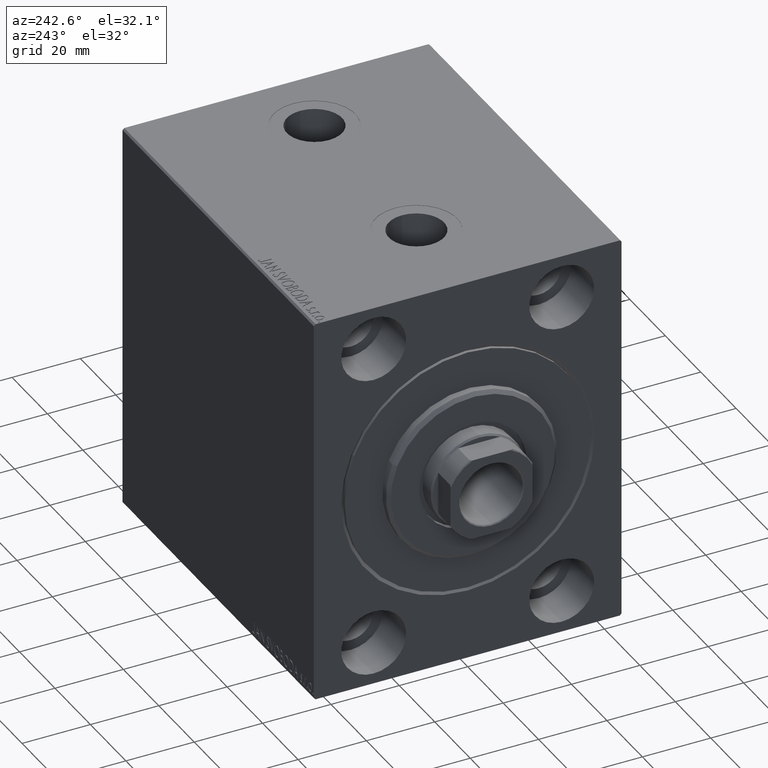
[diagram: clean part render]
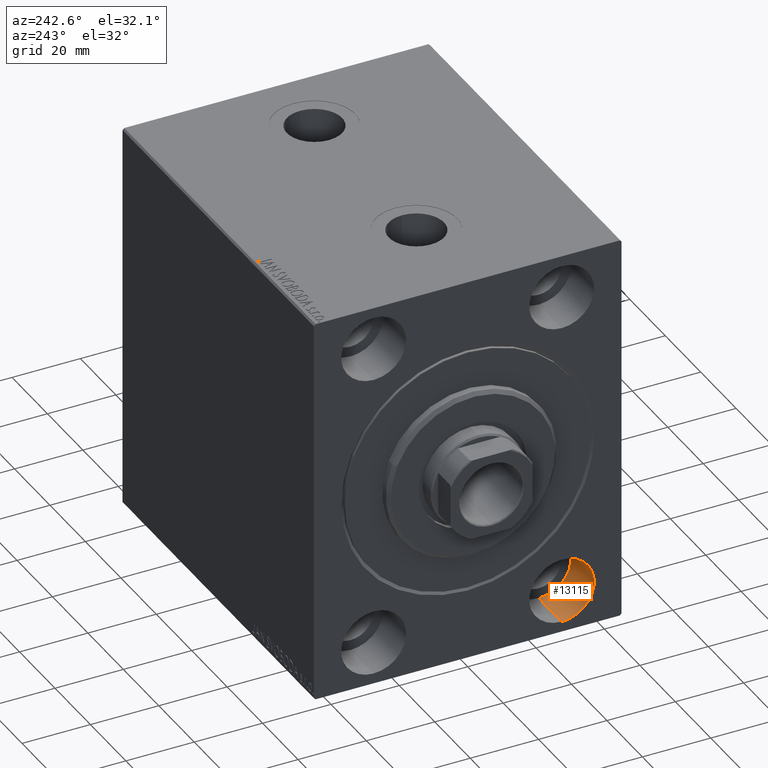
[diagram: same view with one face highlighted and labeled with its STEP entity id]
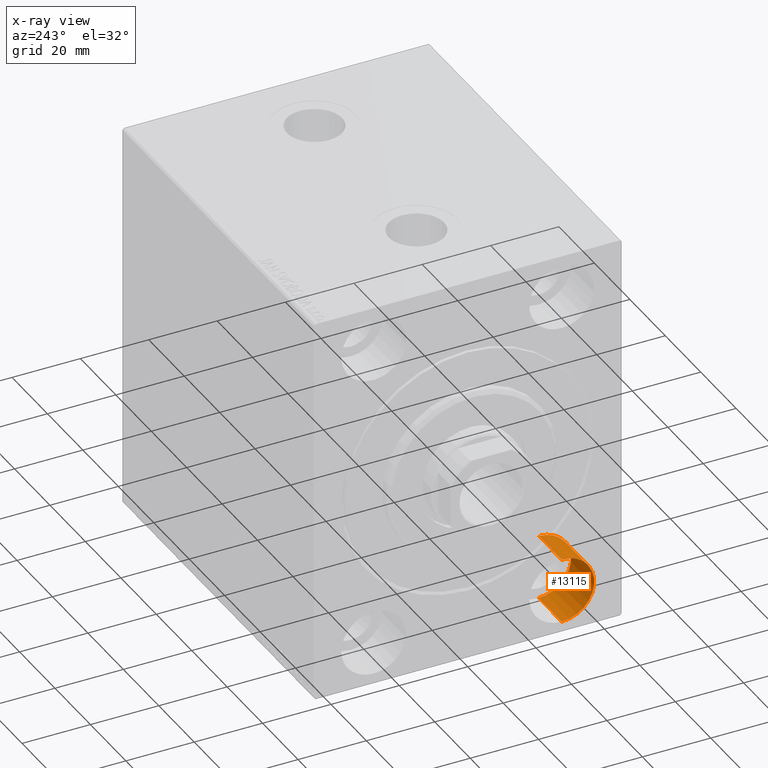
[diagram: x-ray of the same camera — body ghosted, the highlighted face saturated]
A machine part, auxiliary view. The second image highlights one B-rep face of the part: STEP entity #13115.
The next image is the same camera in x-ray: the body ghosted, the highlighted face saturated — about 0% of this face is hidden behind the body in this view.
In plain terms, the highlighted cylindrical surface (partial cylindrical patch) has radius 9.5 mm, axis along (-1, -0, -0).
Its self-contained STEP definition (entity closure, byte-faithful):
#344 = ORIENTED_EDGE ( 'NONE', *, *, #42812, .T. ) ;
#2420 = ORIENTED_EDGE ( 'NONE', *, *, #19828, .F. ) ;
#3396 = CARTESIAN_POINT ( 'NONE',  ( 13.00000000000000000, -27.50000000000000000, -44.99999999999998579 ) ) ;
#5499 = CIRCLE ( 'NONE', #11180, 9.500000000000001776 ) ;
#5508 = LINE ( 'NONE', #18888, #25443 ) ;
#6343 = CIRCLE ( 'NONE', #36259, 9.500000000000001776 ) ;
#8895 = CARTESIAN_POINT ( 'NONE',  ( 13.00000000000000000, -27.50000000000000000, -44.99999999999998579 ) ) ;
#9997 = CARTESIAN_POINT ( 'NONE',  ( 0.000000000000000000, -27.50000000000000000, -44.99999999999998579 ) ) ;
#11180 = AXIS2_PLACEMENT_3D ( 'NONE', #8895, #29393, #38993 ) ;
#13115 = ADVANCED_FACE ( 'NONE', ( #20343 ), #33933, .F. ) ;
#13162 = AXIS2_PLACEMENT_3D ( 'NONE', #3396, #37503, #34157 ) ;
#16258 = DIRECTION ( 'NONE',  ( 0.000000000000000000, 0.000000000000000000, 1.000000000000000000 ) ) ;
#17440 = CARTESIAN_POINT ( 'NONE',  ( 13.00000000000000000, -27.50000000000000000, -35.49999999999998579 ) ) ;
#18888 = CARTESIAN_POINT ( 'NONE',  ( 13.00000000000000000, -27.50000000000000000, -35.49999999999998579 ) ) ;
#19828 = EDGE_CURVE ( 'NONE', #25588, #29106, #5499, .T. ) ;
#20030 = DIRECTION ( 'NONE',  ( -1.000000000000000000, 0.000000000000000000, 0.000000000000000000 ) ) ;
#20343 = FACE_OUTER_BOUND ( 'NONE', #22366, .T. ) ;
#20781 = EDGE_CURVE ( 'NONE', #29106, #38636, #5508, .T. ) ;
#21761 = VECTOR ( 'NONE', #35237, 1000.000000000000000 ) ;
#22366 = EDGE_LOOP ( 'NONE', ( #2420, #344, #23755, #34269 ) ) ;
#23755 = ORIENTED_EDGE ( 'NONE', *, *, #30341, .T. ) ;
#24758 = LINE ( 'NONE', #41473, #21761 ) ;
#24914 = CARTESIAN_POINT ( 'NONE',  ( 0.000000000000000000, -27.50000000000000000, -54.49999999999998579 ) ) ;
#25443 = VECTOR ( 'NONE', #35813, 1000.000000000000000 ) ;
#25588 = VERTEX_POINT ( 'NONE', #36007 ) ;
#29067 = CARTESIAN_POINT ( 'NONE',  ( 0.000000000000000000, -27.50000000000000000, -35.49999999999998579 ) ) ;
#29106 = VERTEX_POINT ( 'NONE', #17440 ) ;
#29393 = DIRECTION ( 'NONE',  ( -1.000000000000000000, 0.000000000000000000, 0.000000000000000000 ) ) ;
#30341 = EDGE_CURVE ( 'NONE', #33879, #38636, #6343, .T. ) ;
#33879 = VERTEX_POINT ( 'NONE', #24914 ) ;
#33933 = CYLINDRICAL_SURFACE ( 'NONE', #13162, 9.500000000000001776 ) ;
#34157 = DIRECTION ( 'NONE',  ( 0.000000000000000000, 0.000000000000000000, 1.000000000000000000 ) ) ;
#34269 = ORIENTED_EDGE ( 'NONE', *, *, #20781, .F. ) ;
#35237 = DIRECTION ( 'NONE',  ( -1.000000000000000000, -0.000000000000000000, -0.000000000000000000 ) ) ;
#35813 = DIRECTION ( 'NONE',  ( -1.000000000000000000, -0.000000000000000000, -0.000000000000000000 ) ) ;
#36007 = CARTESIAN_POINT ( 'NONE',  ( 13.00000000000000000, -27.50000000000000000, -54.49999999999998579 ) ) ;
#36259 = AXIS2_PLACEMENT_3D ( 'NONE', #9997, #20030, #16258 ) ;
#37503 = DIRECTION ( 'NONE',  ( -1.000000000000000000, -0.000000000000000000, -0.000000000000000000 ) ) ;
#38636 = VERTEX_POINT ( 'NONE', #29067 ) ;
#38993 = DIRECTION ( 'NONE',  ( 0.000000000000000000, 0.000000000000000000, 1.000000000000000000 ) ) ;
#41473 = CARTESIAN_POINT ( 'NONE',  ( 13.00000000000000000, -27.50000000000000000, -54.49999999999998579 ) ) ;
#42812 = EDGE_CURVE ( 'NONE', #25588, #33879, #24758, .T. ) ;